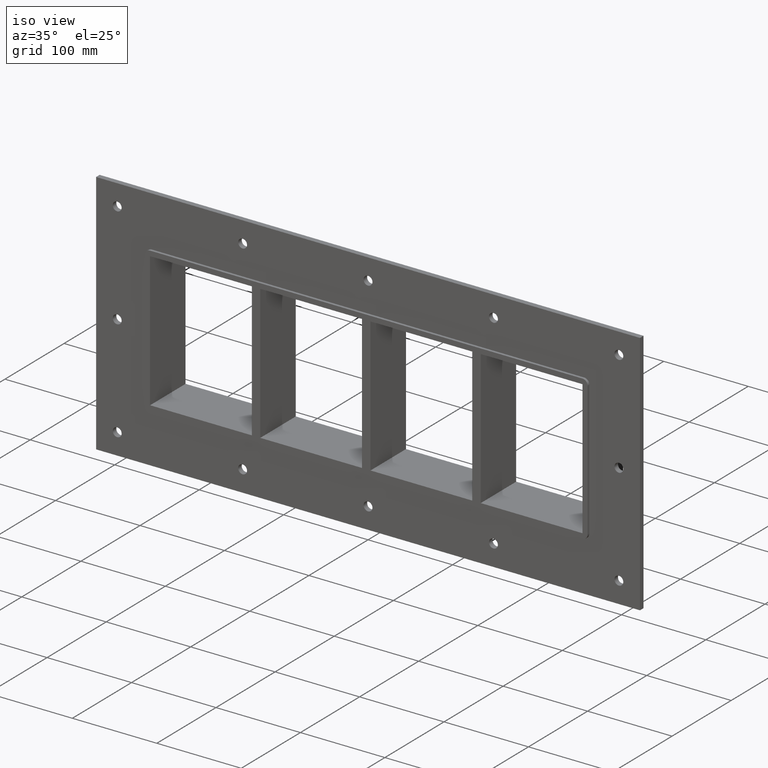
[diagram: clean part render]
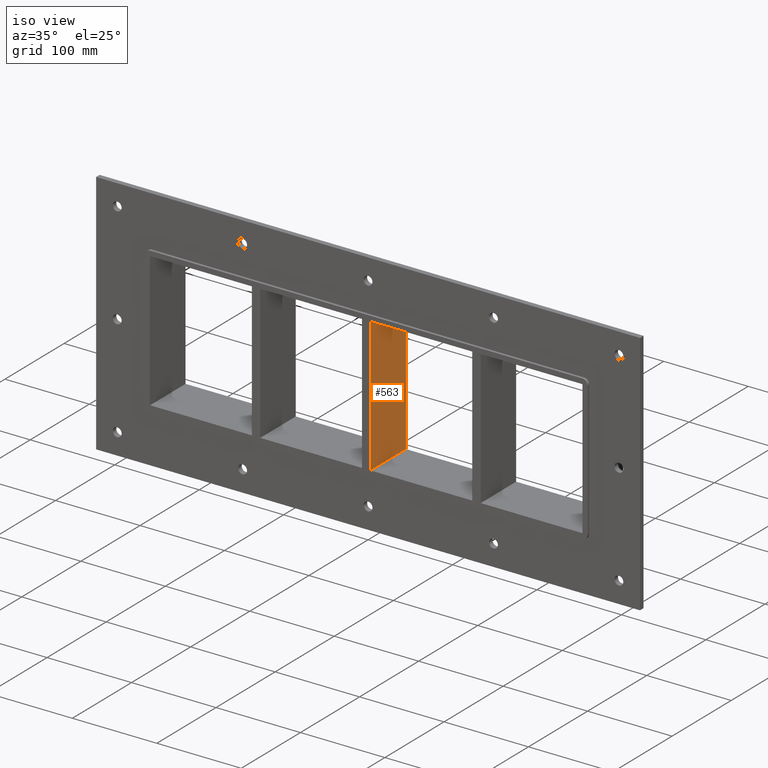
[diagram: same view with one face highlighted and labeled with its STEP entity id]
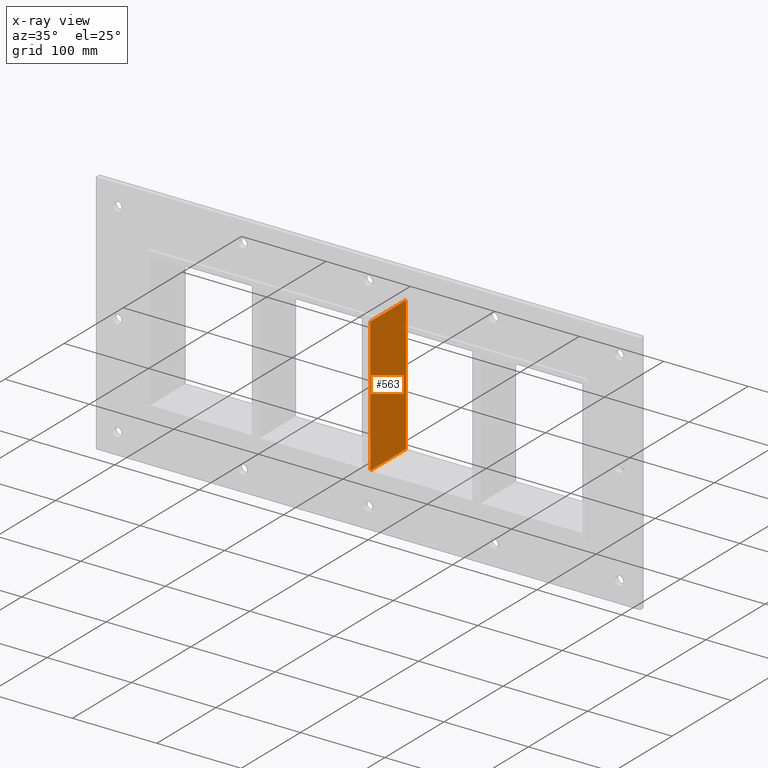
[diagram: x-ray of the same camera — body ghosted, the highlighted face saturated]
A machine part, iso view. The second image highlights one B-rep face of the part: STEP entity #563.
The next image is the same camera in x-ray: the body ghosted, the highlighted face saturated — about 0% of this face is hidden behind the body in this view.
In plain terms, the highlighted planar face has unit normal (1, 0, 0).
Its self-contained STEP definition (entity closure, byte-faithful):
#524=CARTESIAN_POINT('',(5.000000000007283,-3.0,79.750000000000014));
#525=DIRECTION('',(1.0,0.0,0.0));
#526=DIRECTION('',(0.0,0.0,-1.0));
#527=AXIS2_PLACEMENT_3D('',#524,#525,#526);
#528=PLANE('',#527);
#529=CARTESIAN_POINT('',(5.000000000007283,-3.0,79.750000000000014));
#530=VERTEX_POINT('',#529);
#531=CARTESIAN_POINT('',(5.000000000007283,-3.0,-79.749999999987168));
#532=VERTEX_POINT('',#531);
#533=CARTESIAN_POINT('',(5.000000000007283,-3.0,79.750000000000014));
#534=DIRECTION('',(0.0,0.0,-1.0));
#535=VECTOR('',#534,159.49999999998718);
#536=LINE('',#533,#535);
#537=EDGE_CURVE('',#530,#532,#536,.T.);
#538=ORIENTED_EDGE('',*,*,#537,.T.);
#539=CARTESIAN_POINT('',(5.000000000007283,57.0,-79.749999999987168));
#540=VERTEX_POINT('',#539);
#541=CARTESIAN_POINT('',(5.000000000007283,57.000000000000007,-79.750000000000014));
#542=DIRECTION('',(0.0,-1.0,0.0));
#543=VECTOR('',#542,60.000000000000007);
#544=LINE('',#541,#543);
#545=EDGE_CURVE('',#540,#532,#544,.T.);
#546=ORIENTED_EDGE('',*,*,#545,.F.);
#547=CARTESIAN_POINT('',(5.000000000007283,57.0,79.750000000000014));
#548=VERTEX_POINT('',#547);
#549=CARTESIAN_POINT('',(5.000000000007283,57.0,79.750000000000014));
#550=DIRECTION('',(0.0,0.0,-1.0));
#551=VECTOR('',#550,159.49999999998718);
#552=LINE('',#549,#551);
#553=EDGE_CURVE('',#548,#540,#552,.T.);
#554=ORIENTED_EDGE('',*,*,#553,.F.);
#555=CARTESIAN_POINT('',(5.000000000007283,-3.0,79.750000000000014));
#556=DIRECTION('',(0.0,1.0,0.0));
#557=VECTOR('',#556,60.000000000000007);
#558=LINE('',#555,#557);
#559=EDGE_CURVE('',#530,#548,#558,.T.);
#560=ORIENTED_EDGE('',*,*,#559,.F.);
#561=EDGE_LOOP('',(#538,#546,#554,#560));
#562=FACE_OUTER_BOUND('',#561,.T.);
#563=ADVANCED_FACE('',(#562),#528,.T.);